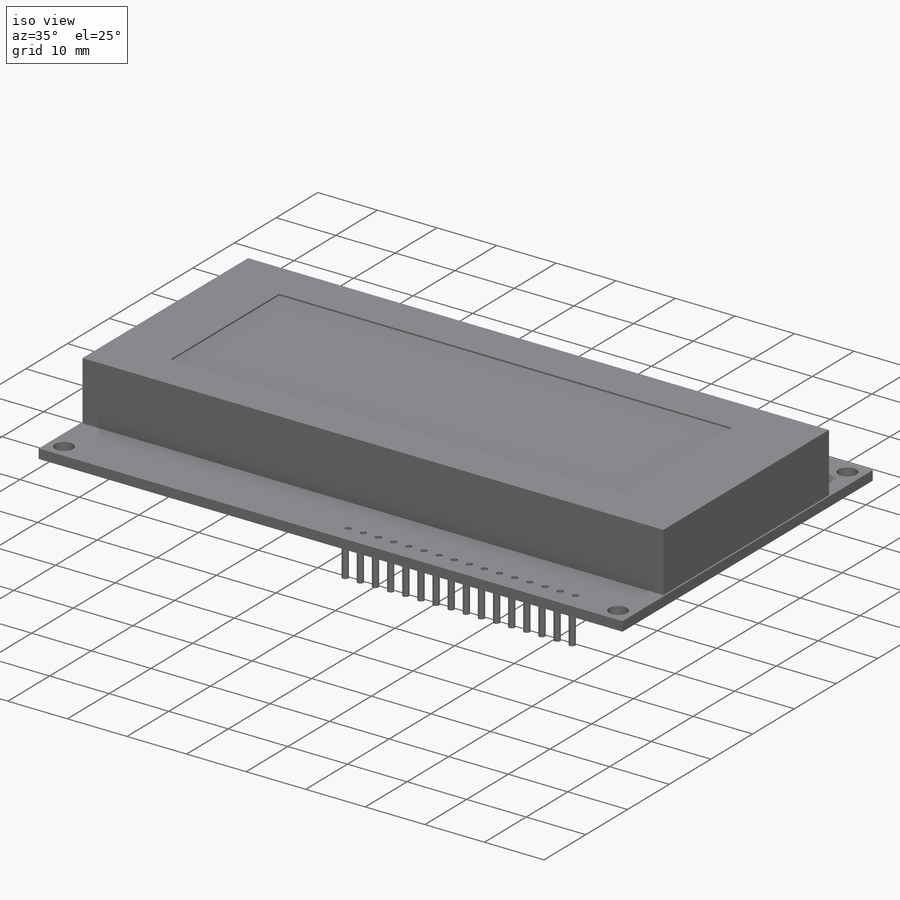
[diagram: iso view]
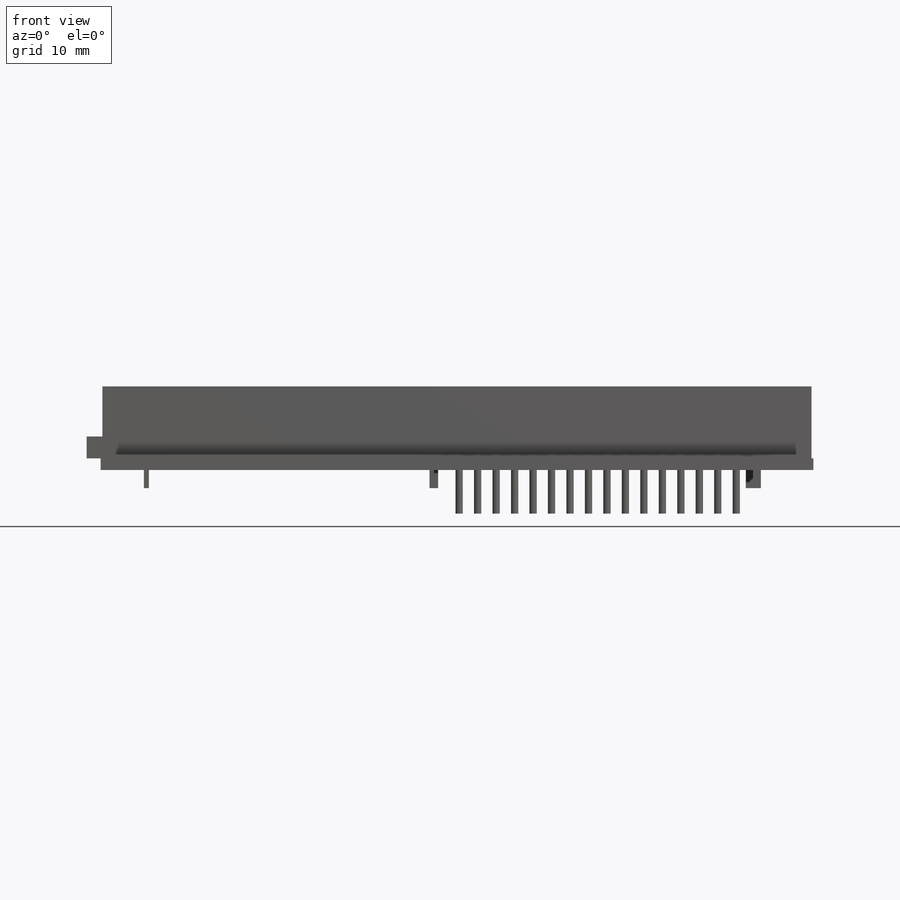
[diagram: front view]
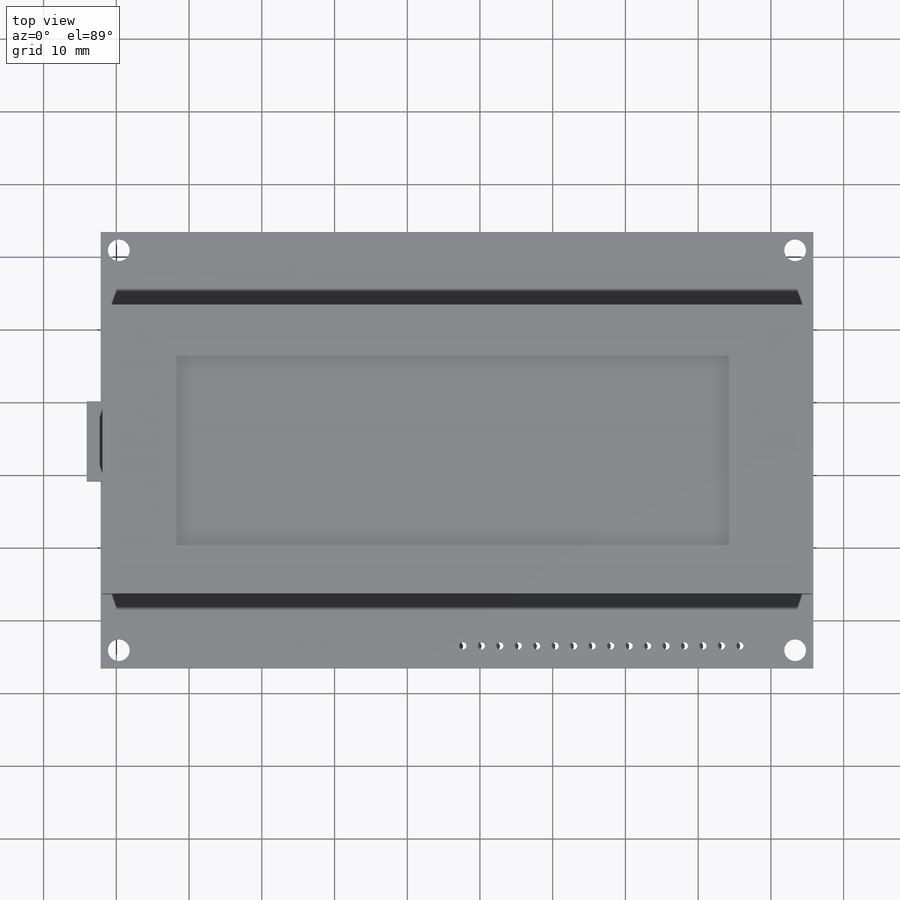
[diagram: top view]
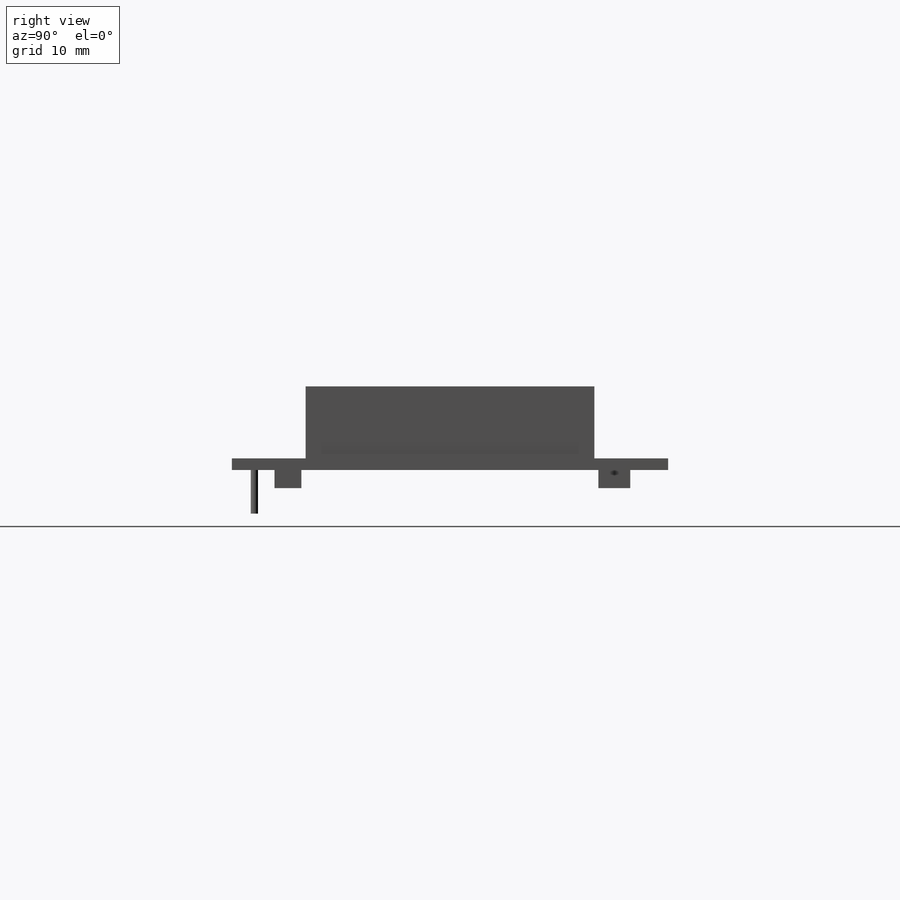
[diagram: right view]
SOLIDWORKS PART (.sldprt)
format: sldprt  version: not decoded by parser v0  size: 363,520 bytes
history: native  units: mm
features: sketch x8, extrude x5, cut_extrude x3, material x1 (+11 scaffold rows collapsed)
feature tree (28):
  scaffold x11  (default folders/planes/origin — collapsed)
  material  "Material <not specified>"
  sketch  "Sketch1"  dims[D1=60.0mm D2=98.0mm]
  extrude  "PCB board"  Depth=1.6mm
  sketch  "Sketch4"  dims[c1.D1=~2.170191mm c1.D5=3.0mm c1.D3=2.0mm c1.D4=2.5mm c2.D5=55.0mm c2.D6=93.0mm c2.D7=2.54mm c2.D8=~2.501141mm c2.D9=~2.227558mm c2.D10=~2.773583mm c3.D9=~92.998859mm c3.D3=2.5mm c3.D4=~2.501141mm c3.D7=2.5mm c3.D8=~2.501141mm c4.D9=2.5mm c4.D10=55.0mm c4.D1=2.5mm c4.D2=2.0]
  cut_extrude  "Mounting holes"  Depth=1.6mm
  sketch  "Sketch5"  dims[c1.D1=~0.82945mm c1.D4=1.0mm c1.D2=3.1mm c1.D3=10.1mm c2.D1=16.0]
  cut_extrude  "PCB holes"  Depth=1.6mm
  sketch  "Sketch6"  dims[D1=16.0]
  extrude  "Headers"  Depth=6mm
  sketch  "Sketch2"  dims[D1=97.5mm D2=39.7mm D3=49.0mm D4=30.0mm D5=26.0mm D6=76.0mm]
  extrude  "Black LCD frame"  Depth=9.9mm
  sketch  "Sketch7"  dims[D1=11.0mm D2=3.0mm]
  extrude  "White part that sticks out"  Depth=2.17mm
  sketch  "Sketch3"  dims[D1=26.0mm D2=76.0mm D3=39.5mm]
  cut_extrude  "LCD screen"  Depth=0.254mm
  sketch  "Sketch8"
  extrude  "Boss-Extrude1"  Depth=2.5mm
decode coverage: 15 of 16 modeling features carry decoded parameters
note: ~ marks probable driven/reference dimensions
note: suppression state not decoded; provenance and decode notes live in map.json
